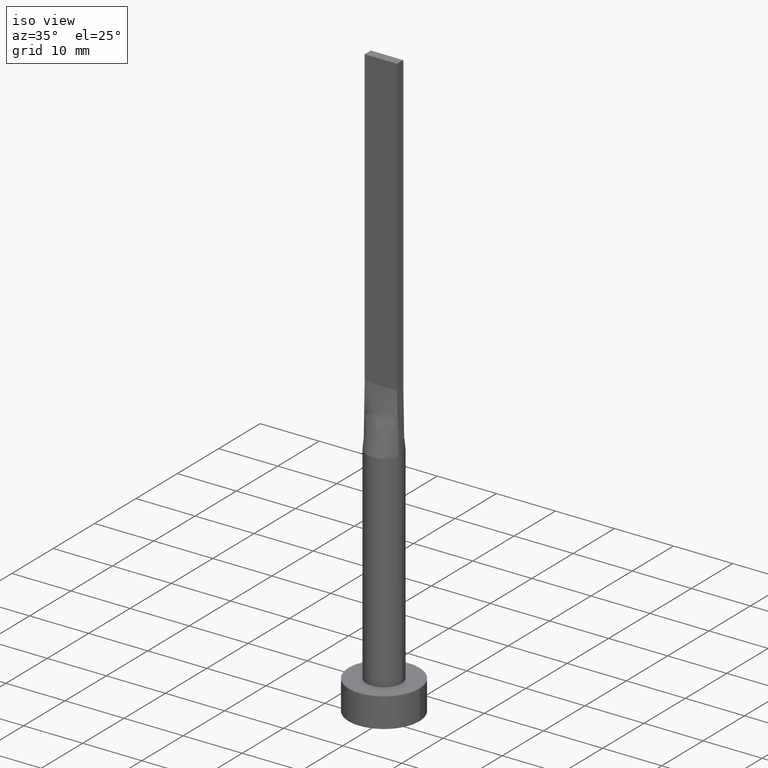
[diagram: clean part render]
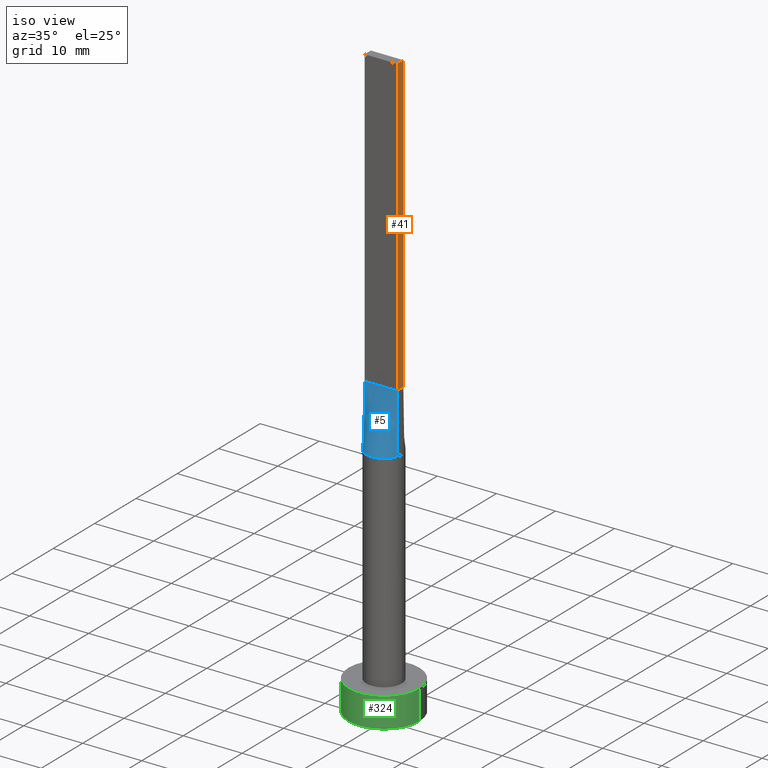
[diagram: same view with three faces highlighted in distinct colors, each labeled with its STEP entity id]
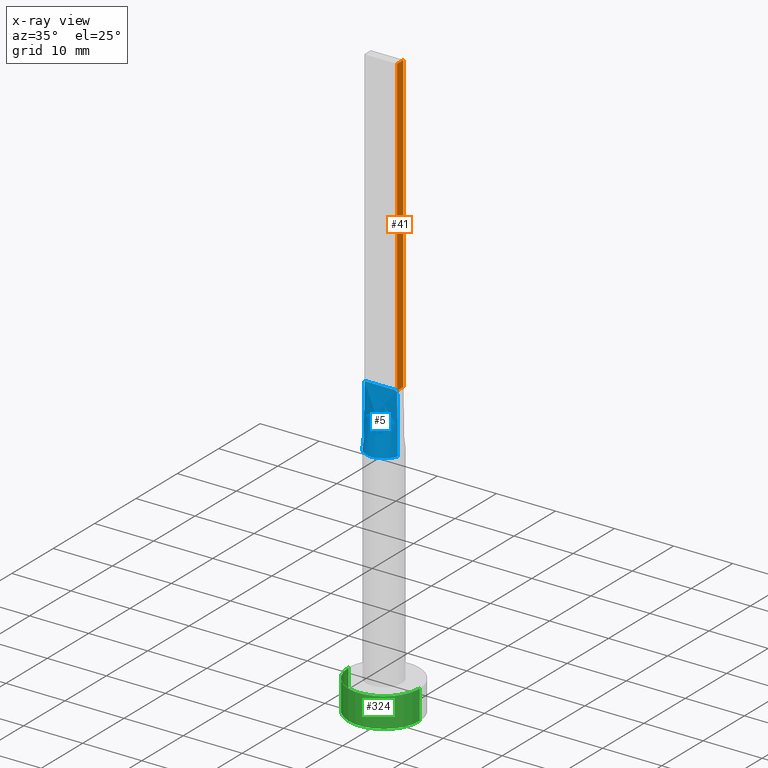
[diagram: x-ray of the same camera — body ghosted, the three highlighted faces saturated]
A machine part, iso view with three faces highlighted in distinct colors.
The next image is the same camera in x-ray (body ghosted, the three faces saturated) — at least one of them is partly hidden behind the body in this view.
Their STEP definitions:

[orange] entity #41 — the highlighted planar face has unit normal (-1, 0, 0).
#11 = CARTESIAN_POINT ( 'NONE',  ( 2.750000000000000000, 0.7500000000000002220, 100.0000000000000000 ) ) ;
#13 = VERTEX_POINT ( 'NONE', #369 ) ;
#23 = EDGE_CURVE ( 'NONE', #303, #363, #284, .T. ) ;
#41 = ADVANCED_FACE ( 'NONE', ( #535 ), #136, .F. ) ;
#71 = VECTOR ( 'NONE', #114, 1000.000000000000000 ) ;
#80 = DIRECTION ( 'NONE',  ( -0.000000000000000000, 1.000000000000000000, -0.000000000000000000 ) ) ;
#83 = CARTESIAN_POINT ( 'NONE',  ( 2.750000000000000000, -0.7499999999999997780, 100.0000000000000000 ) ) ;
#104 = ORIENTED_EDGE ( 'NONE', *, *, #199, .T. ) ;
#113 = VERTEX_POINT ( 'NONE', #289 ) ;
#114 = DIRECTION ( 'NONE',  ( -0.000000000000000000, -0.000000000000000000, -1.000000000000000000 ) ) ;
#117 = LINE ( 'NONE', #211, #298 ) ;
#136 = PLANE ( 'NONE',  #201 ) ;
#144 = CARTESIAN_POINT ( 'NONE',  ( 2.750000000000000000, -0.7499999999999997780, 100.0000000000000000 ) ) ;
#155 = EDGE_CURVE ( 'NONE', #363, #13, #117, .T. ) ;
#162 = LINE ( 'NONE', #340, #71 ) ;
#163 = VECTOR ( 'NONE', #364, 1000.000000000000000 ) ;
#199 = EDGE_CURVE ( 'NONE', #113, #13, #436, .T. ) ;
#201 = AXIS2_PLACEMENT_3D ( 'NONE', #278, #538, #454 ) ;
#211 = CARTESIAN_POINT ( 'NONE',  ( 2.750000000000000000, 0.7500000000000002220, 100.0000000000000000 ) ) ;
#271 = CARTESIAN_POINT ( 'NONE',  ( 2.750000000000000000, 0.7500000000000002220, 50.00000000000000000 ) ) ;
#278 = CARTESIAN_POINT ( 'NONE',  ( 2.750000000000000000, -0.7499999999999997780, 100.0000000000000000 ) ) ;
#284 = LINE ( 'NONE', #144, #163 ) ;
#289 = CARTESIAN_POINT ( 'NONE',  ( 2.750000000000000000, -0.7499999999999997780, 50.00000000000000000 ) ) ;
#298 = VECTOR ( 'NONE', #360, 1000.000000000000000 ) ;
#303 = VERTEX_POINT ( 'NONE', #83 ) ;
#309 = EDGE_CURVE ( 'NONE', #303, #113, #162, .T. ) ;
#340 = CARTESIAN_POINT ( 'NONE',  ( 2.750000000000000000, -0.7499999999999997780, 100.0000000000000000 ) ) ;
#360 = DIRECTION ( 'NONE',  ( -0.000000000000000000, -0.000000000000000000, -1.000000000000000000 ) ) ;
#363 = VERTEX_POINT ( 'NONE', #11 ) ;
#364 = DIRECTION ( 'NONE',  ( 0.000000000000000000, 1.000000000000000000, 0.000000000000000000 ) ) ;
#369 = CARTESIAN_POINT ( 'NONE',  ( 2.750000000000000000, 0.7500000000000002220, 50.00000000000000000 ) ) ;
#435 = EDGE_LOOP ( 'NONE', ( #104, #520, #515, #478 ) ) ;
#436 = LINE ( 'NONE', #271, #449 ) ;
#449 = VECTOR ( 'NONE', #80, 1000.000000000000000 ) ;
#454 = DIRECTION ( 'NONE',  ( 0.000000000000000000, 0.000000000000000000, 1.000000000000000000 ) ) ;
#478 = ORIENTED_EDGE ( 'NONE', *, *, #309, .T. ) ;
#515 = ORIENTED_EDGE ( 'NONE', *, *, #23, .F. ) ;
#520 = ORIENTED_EDGE ( 'NONE', *, *, #155, .F. ) ;
#535 = FACE_OUTER_BOUND ( 'NONE', #435, .T. ) ;
#538 = DIRECTION ( 'NONE',  ( -1.000000000000000000, 0.000000000000000000, 0.000000000000000000 ) ) ;

[blue] entity #5 — the highlighted face is a freeform B-spline surface patch.
#2 = FACE_OUTER_BOUND ( 'NONE', #331, .T. ) ;
#5 = ADVANCED_FACE ( 'NONE', ( #2 ), #351, .T. ) ;
#6 = CARTESIAN_POINT ( 'NONE',  ( 2.750000000000000000, -0.7499999999999997780, 50.00000000000000000 ) ) ;
#9 = CARTESIAN_POINT ( 'NONE',  ( -2.894489875237701959, -0.7894071376467488577, 40.00000000000000000 ) ) ;
#14 = DIRECTION ( 'NONE',  ( 0.000000000000000000, 0.000000000000000000, 1.000000000000000000 ) ) ;
#32 = VERTEX_POINT ( 'NONE', #9 ) ;
#46 = CARTESIAN_POINT ( 'NONE',  ( -2.248179627679386616, -2.014142483996539390, 39.99999999999999289 ) ) ;
#48 = CARTESIAN_POINT ( 'NONE',  ( -2.291666666666665186, -0.7499999999999995559, 50.00000000000000000 ) ) ;
#52 = CARTESIAN_POINT ( 'NONE',  ( 2.520833333333333481, -0.7499999999999997780, 50.00000000000000000 ) ) ;
#54 = CARTESIAN_POINT ( 'NONE',  ( 1.604166666666668961, -0.7499999999999997780, 50.00000000000000000 ) ) ;
#81 = AXIS2_PLACEMENT_3D ( 'NONE', #542, #14, #461 ) ;
#86 = CARTESIAN_POINT ( 'NONE',  ( 1.447928580458857972, -2.653161878569119558, 40.00000000000000000 ) ) ;
#89 = CARTESIAN_POINT ( 'NONE',  ( 2.894291463713196677, -0.7893522173763275473, 40.00000000000000000 ) ) ;
#91 = CARTESIAN_POINT ( 'NONE',  ( 1.833333333333335258, -0.7499999999999997780, 50.00000000000000000 ) ) ;
#94 = CARTESIAN_POINT ( 'NONE',  ( -1.833333333333331261, -0.7499999999999995559, 50.00000000000000000 ) ) ;
#113 = VERTEX_POINT ( 'NONE', #289 ) ;
#128 = LINE ( 'NONE', #568, #135 ) ;
#135 = VECTOR ( 'NONE', #524, 1000.000000000000000 ) ;
#141 = CARTESIAN_POINT ( 'NONE',  ( 2.894514141151844910, -0.7894138151126538494, 40.00000000000000000 ) ) ;
#142 = CARTESIAN_POINT ( 'NONE',  ( -0.3818979204996094667, -3.000000000000000000, 40.00000000000000000 ) ) ;
#158 = DIRECTION ( 'NONE',  ( -0.01442753284129399960, 0.003934781683989411159, 0.9998881756422629552 ) ) ;
#172 = DIRECTION ( 'NONE',  ( 1.000000000000000000, -5.913830031739115543E-17, 0.000000000000000000 ) ) ;
#178 = CIRCLE ( 'NONE', #81, 3.000000000000000444 ) ;
#180 = CARTESIAN_POINT ( 'NONE',  ( 0.7628506052746785171, -2.924692134573155577, 39.99999999999999289 ) ) ;
#182 = CARTESIAN_POINT ( 'NONE',  ( -2.442412046818594806, -1.765588549521968975, 40.00000000000000000 ) ) ;
#185 = CARTESIAN_POINT ( 'NONE',  ( -2.894291463713197121, -0.7893522173763257710, 40.00000000000000000 ) ) ;
#187 = CARTESIAN_POINT ( 'NONE',  ( 2.248179627679384840, -2.014142483996542055, 39.99999999999999289 ) ) ;
#189 = CARTESIAN_POINT ( 'NONE',  ( -1.751288851749022379, -2.458468820606022565, 40.00000000000000000 ) ) ;
#209 = EDGE_CURVE ( 'NONE', #441, #113, #572, .T. ) ;
#226 = CARTESIAN_POINT ( 'NONE',  ( 0.3818979204996068022, -3.000000000000001332, 40.00000000000000000 ) ) ;
#229 = EDGE_CURVE ( 'NONE', #441, #32, #128, .T. ) ;
#233 = CARTESIAN_POINT ( 'NONE',  ( -0.4583333333333302062, -0.7499999999999995559, 50.00000000000000711 ) ) ;
#235 = CARTESIAN_POINT ( 'NONE',  ( -2.733316749964668446, -1.269511353635829787, 40.00000000000001421 ) ) ;
#238 = CARTESIAN_POINT ( 'NONE',  ( 2.733316749964666670, -1.269511353635832229, 40.00000000000001421 ) ) ;
#244 = ORIENTED_EDGE ( 'NONE', *, *, #487, .T. ) ;
#273 = VECTOR ( 'NONE', #172, 1000.000000000000000 ) ;
#274 = CARTESIAN_POINT ( 'NONE',  ( 1.751288851749020603, -2.458468820606023897, 39.99999999999999289 ) ) ;
#289 = CARTESIAN_POINT ( 'NONE',  ( 2.750000000000000000, -0.7499999999999997780, 50.00000000000000000 ) ) ;
#305 = LINE ( 'NONE', #346, #550 ) ;
#314 = CARTESIAN_POINT ( 'NONE',  ( 0.4583333333333364235, -0.7499999999999995559, 50.00000000000000000 ) ) ;
#318 = CARTESIAN_POINT ( 'NONE',  ( 2.830829925251657997, -1.022044525068636078, 40.00000000000000000 ) ) ;
#323 = CARTESIAN_POINT ( 'NONE',  ( -0.2291666666666634655, -0.7499999999999995559, 50.00000000000000711 ) ) ;
#331 = EDGE_LOOP ( 'NONE', ( #244, #414, #343, #405 ) ) ;
#343 = ORIENTED_EDGE ( 'NONE', *, *, #209, .F. ) ;
#346 = CARTESIAN_POINT ( 'NONE',  ( 2.822145731856598339, -0.7696761086881637182, 45.00000000000000000 ) ) ;
#351 = B_SPLINE_SURFACE_WITH_KNOTS ( 'NONE', 3, 1, ( 
 ( #185, #581 ),
 ( #366, #498 ),
 ( #235, #48 ),
 ( #182, #94 ),
 ( #46, #415 ),
 ( #189, #460 ),
 ( #492, #491 ),
 ( #374, #233 ),
 ( #142, #323 ),
 ( #226, #404 ),
 ( #180, #314 ),
 ( #86, #579 ),
 ( #274, #412 ),
 ( #187, #54 ),
 ( #495, #91 ),
 ( #238, #450 ),
 ( #318, #52 ),
 ( #89, #6 ) ),
 .UNSPECIFIED., .F., .F., .F.,
 ( 4, 2, 2, 2, 2, 2, 2, 2, 4 ),
 ( 2, 2 ),
 ( 0.000000000000000000, 0.1250000000000000000, 0.2500000000000000000, 0.3750000000000000000, 0.5000000000000000000, 0.6250000000000000000, 0.7500000000000000000, 0.8750000000000000000, 1.000000000000000000 ),
 ( 0.000000000000000000, 1.000000000000000000 ),
 .UNSPECIFIED. ) ;
#366 = CARTESIAN_POINT ( 'NONE',  ( -2.830829925251658885, -1.022044525068633858, 39.99999999999999289 ) ) ;
#371 = VERTEX_POINT ( 'NONE', #141 ) ;
#374 = CARTESIAN_POINT ( 'NONE',  ( -0.7628506052746809596, -2.924692134573154245, 39.99999999999998579 ) ) ;
#404 = CARTESIAN_POINT ( 'NONE',  ( 0.2291666666666698216, -0.7499999999999995559, 50.00000000000000711 ) ) ;
#405 = ORIENTED_EDGE ( 'NONE', *, *, #229, .T. ) ;
#412 = CARTESIAN_POINT ( 'NONE',  ( 1.145833333333335924, -0.7499999999999996669, 50.00000000000000000 ) ) ;
#414 = ORIENTED_EDGE ( 'NONE', *, *, #553, .T. ) ;
#415 = CARTESIAN_POINT ( 'NONE',  ( -1.604166666666664520, -0.7499999999999995559, 50.00000000000000000 ) ) ;
#441 = VERTEX_POINT ( 'NONE', #552 ) ;
#450 = CARTESIAN_POINT ( 'NONE',  ( 2.291666666666667407, -0.7499999999999997780, 50.00000000000000000 ) ) ;
#460 = CARTESIAN_POINT ( 'NONE',  ( -1.145833333333330817, -0.7499999999999995559, 50.00000000000000711 ) ) ;
#461 = DIRECTION ( 'NONE',  ( 1.000000000000000000, 0.000000000000000000, 0.000000000000000000 ) ) ;
#487 = EDGE_CURVE ( 'NONE', #32, #371, #178, .T. ) ;
#489 = CARTESIAN_POINT ( 'NONE',  ( -2.750000000000000000, -0.7499999999999994449, 50.00000000000000000 ) ) ;
#491 = CARTESIAN_POINT ( 'NONE',  ( -0.9166666666666638541, -0.7499999999999995559, 50.00000000000000711 ) ) ;
#492 = CARTESIAN_POINT ( 'NONE',  ( -1.447928580458859749, -2.653161878569118226, 39.99999999999999289 ) ) ;
#495 = CARTESIAN_POINT ( 'NONE',  ( 2.442412046818594362, -1.765588549521970751, 40.00000000000001421 ) ) ;
#498 = CARTESIAN_POINT ( 'NONE',  ( -2.520833333333333037, -0.7499999999999994449, 50.00000000000000000 ) ) ;
#524 = DIRECTION ( 'NONE',  ( -0.01442753284129404297, -0.003934781683989269779, -0.9998881756422629552 ) ) ;
#542 = CARTESIAN_POINT ( 'NONE',  ( 0.000000000000000000, 0.000000000000000000, 40.00000000000000000 ) ) ;
#550 = VECTOR ( 'NONE', #158, 1000.000000000000000 ) ;
#552 = CARTESIAN_POINT ( 'NONE',  ( -2.750000000000000000, -0.7499999999999994449, 50.00000000000000000 ) ) ;
#553 = EDGE_CURVE ( 'NONE', #371, #113, #305, .T. ) ;
#568 = CARTESIAN_POINT ( 'NONE',  ( -2.822145731856598783, -0.7696761086881626079, 45.00000000000000000 ) ) ;
#572 = LINE ( 'NONE', #489, #273 ) ;
#579 = CARTESIAN_POINT ( 'NONE',  ( 0.9166666666666695162, -0.7499999999999995559, 50.00000000000000000 ) ) ;
#581 = CARTESIAN_POINT ( 'NONE',  ( -2.750000000000000000, -0.7499999999999994449, 50.00000000000000000 ) ) ;

[green] entity #324 — the highlighted cylindrical surface (partial cylindrical patch) has radius 6 mm, axis along (-0, -0, -1).
#28 = CARTESIAN_POINT ( 'NONE',  ( -6.000000000000000888, 0.000000000000000000, 5.000000000000000000 ) ) ;
#51 = DIRECTION ( 'NONE',  ( 0.000000000000000000, 0.000000000000000000, 1.000000000000000000 ) ) ;
#56 = CARTESIAN_POINT ( 'NONE',  ( 0.000000000000000000, 0.000000000000000000, 5.000000000000000000 ) ) ;
#70 = CARTESIAN_POINT ( 'NONE',  ( -6.000000000000000888, 0.000000000000000000, 5.000000000000000000 ) ) ;
#75 = FACE_OUTER_BOUND ( 'NONE', #341, .T. ) ;
#87 = ORIENTED_EDGE ( 'NONE', *, *, #92, .F. ) ;
#92 = EDGE_CURVE ( 'NONE', #223, #127, #193, .T. ) ;
#127 = VERTEX_POINT ( 'NONE', #427 ) ;
#148 = VECTOR ( 'NONE', #253, 1000.000000000000000 ) ;
#150 = DIRECTION ( 'NONE',  ( 0.000000000000000000, 0.000000000000000000, 1.000000000000000000 ) ) ;
#152 = DIRECTION ( 'NONE',  ( 1.000000000000000000, 0.000000000000000000, 0.000000000000000000 ) ) ;
#164 = DIRECTION ( 'NONE',  ( -0.000000000000000000, -0.000000000000000000, -1.000000000000000000 ) ) ;
#176 = AXIS2_PLACEMENT_3D ( 'NONE', #390, #164, #521 ) ;
#193 = LINE ( 'NONE', #197, #290 ) ;
#197 = CARTESIAN_POINT ( 'NONE',  ( 6.000000000000000888, 7.347880794884120722E-16, 5.000000000000000000 ) ) ;
#208 = CYLINDRICAL_SURFACE ( 'NONE', #176, 6.000000000000000888 ) ;
#223 = VERTEX_POINT ( 'NONE', #231 ) ;
#231 = CARTESIAN_POINT ( 'NONE',  ( 6.000000000000000888, 7.347880794884120722E-16, 5.000000000000000000 ) ) ;
#232 = VERTEX_POINT ( 'NONE', #527 ) ;
#247 = CIRCLE ( 'NONE', #393, 6.000000000000000888 ) ;
#253 = DIRECTION ( 'NONE',  ( -0.000000000000000000, -0.000000000000000000, -1.000000000000000000 ) ) ;
#290 = VECTOR ( 'NONE', #376, 1000.000000000000000 ) ;
#322 = CARTESIAN_POINT ( 'NONE',  ( 0.000000000000000000, 0.000000000000000000, 0.000000000000000000 ) ) ;
#324 = ADVANCED_FACE ( 'NONE', ( #75 ), #208, .T. ) ;
#341 = EDGE_LOOP ( 'NONE', ( #87, #433, #523, #409 ) ) ;
#342 = LINE ( 'NONE', #28, #148 ) ;
#375 = DIRECTION ( 'NONE',  ( 1.000000000000000000, 0.000000000000000000, 0.000000000000000000 ) ) ;
#376 = DIRECTION ( 'NONE',  ( -0.000000000000000000, -0.000000000000000000, -1.000000000000000000 ) ) ;
#390 = CARTESIAN_POINT ( 'NONE',  ( 0.000000000000000000, 0.000000000000000000, 5.000000000000000000 ) ) ;
#393 = AXIS2_PLACEMENT_3D ( 'NONE', #322, #51, #375 ) ;
#402 = EDGE_CURVE ( 'NONE', #232, #127, #247, .T. ) ;
#409 = ORIENTED_EDGE ( 'NONE', *, *, #402, .T. ) ;
#427 = CARTESIAN_POINT ( 'NONE',  ( 6.000000000000000888, 7.347880794884120722E-16, 0.000000000000000000 ) ) ;
#431 = AXIS2_PLACEMENT_3D ( 'NONE', #56, #150, #152 ) ;
#433 = ORIENTED_EDGE ( 'NONE', *, *, #465, .F. ) ;
#465 = EDGE_CURVE ( 'NONE', #531, #223, #480, .T. ) ;
#480 = CIRCLE ( 'NONE', #431, 6.000000000000000888 ) ;
#521 = DIRECTION ( 'NONE',  ( -1.000000000000000000, 0.000000000000000000, 0.000000000000000000 ) ) ;
#523 = ORIENTED_EDGE ( 'NONE', *, *, #546, .T. ) ;
#527 = CARTESIAN_POINT ( 'NONE',  ( -6.000000000000000888, 0.000000000000000000, 0.000000000000000000 ) ) ;
#531 = VERTEX_POINT ( 'NONE', #70 ) ;
#546 = EDGE_CURVE ( 'NONE', #531, #232, #342, .T. ) ;